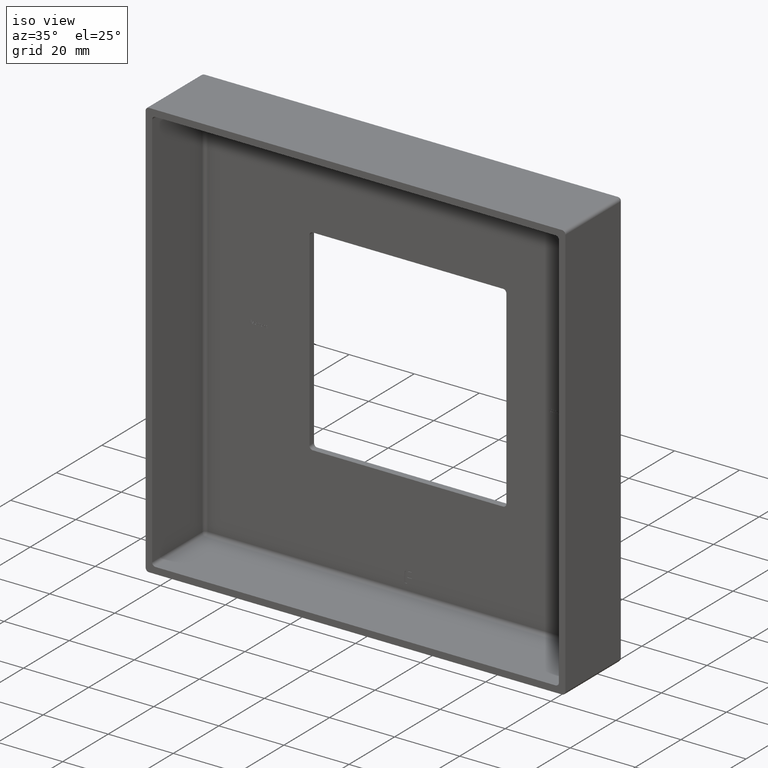
[diagram: clean part render]
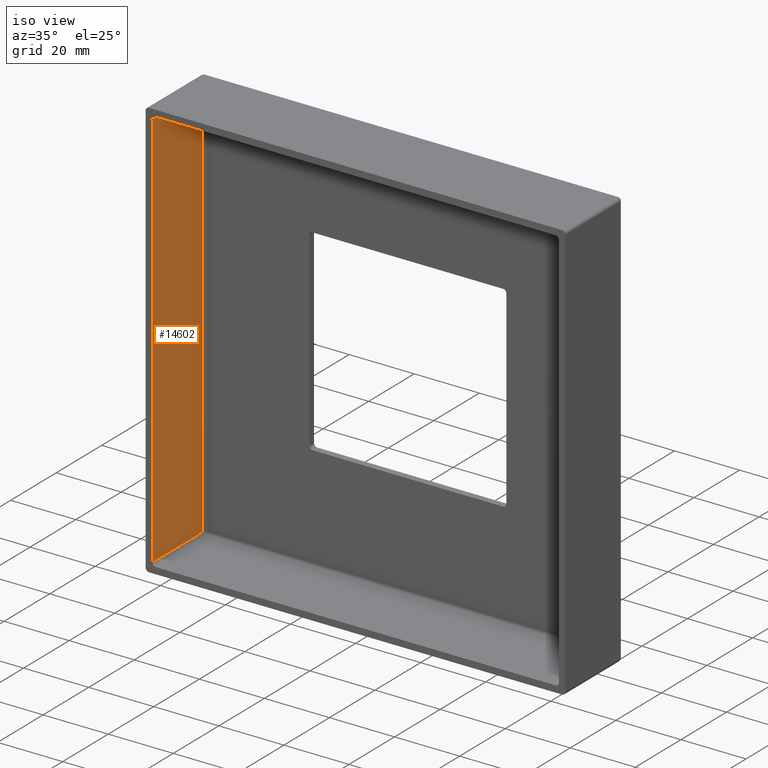
[diagram: same view with one face highlighted and labeled with its STEP entity id]
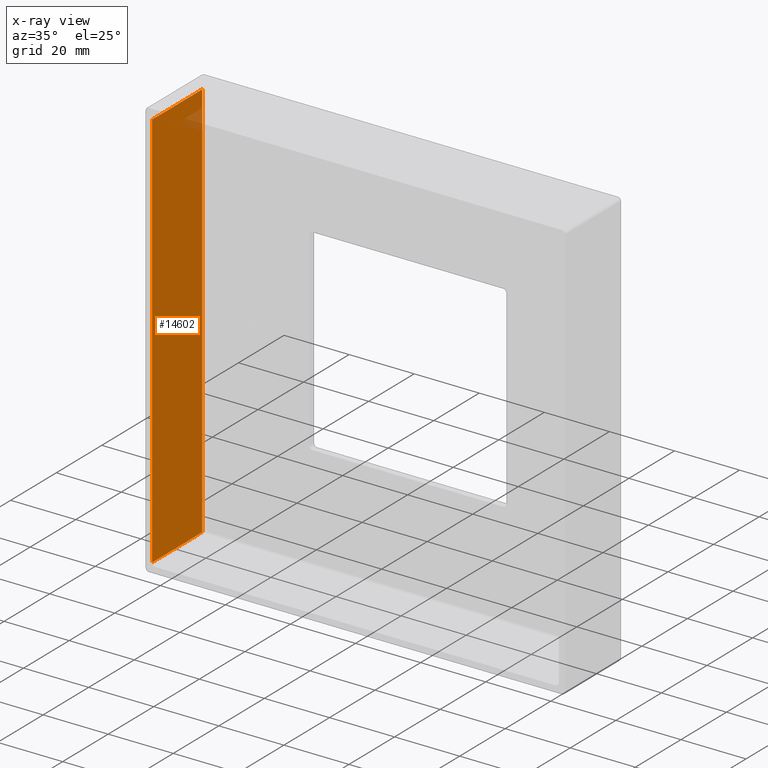
[diagram: x-ray of the same camera — body ghosted, the highlighted face saturated]
A machine part, iso view. The second image highlights one B-rep face of the part: STEP entity #14602.
The next image is the same camera in x-ray: the body ghosted, the highlighted face saturated — about 1% of this face is hidden behind the body in this view.
In plain terms, the highlighted planar face has unit normal (1, 0, -0).
Its self-contained STEP definition (entity closure, byte-faithful):
#496 = VECTOR ( 'NONE', #11982, 1000.000000000000000 ) ;
#508 = CARTESIAN_POINT ( 'NONE',  ( -62.50000000000000000, 0.000000000000000000, -64.49999999999997158 ) ) ;
#665 = EDGE_CURVE ( 'NONE', #11617, #6053, #14047, .T. ) ;
#917 = ORIENTED_EDGE ( 'NONE', *, *, #7552, .F. ) ;
#969 = EDGE_CURVE ( 'NONE', #5833, #6236, #6227, .T. ) ;
#1514 = DIRECTION ( 'NONE',  ( 2.151595008963482038E-16, -0.000000000000000000, 1.000000000000000000 ) ) ;
#2000 = DIRECTION ( 'NONE',  ( 1.000000000000000000, 0.000000000000000000, -2.151595008963482038E-16 ) ) ;
#2292 = FACE_OUTER_BOUND ( 'NONE', #5176, .T. ) ;
#3880 = LINE ( 'NONE', #8354, #4952 ) ;
#4245 = CARTESIAN_POINT ( 'NONE',  ( -62.49999999999997158, 0.000000000000000000, 61.50000000000000000 ) ) ;
#4952 = VECTOR ( 'NONE', #1514, 1000.000000000000000 ) ;
#5046 = ORIENTED_EDGE ( 'NONE', *, *, #969, .T. ) ;
#5176 = EDGE_LOOP ( 'NONE', ( #917, #16338, #7413, #5046 ) ) ;
#5595 = CARTESIAN_POINT ( 'NONE',  ( -62.49999999999997158, 22.00000000000000000, 61.50000000000000000 ) ) ;
#5833 = VERTEX_POINT ( 'NONE', #5595 ) ;
#6053 = VERTEX_POINT ( 'NONE', #6066 ) ;
#6066 = CARTESIAN_POINT ( 'NONE',  ( -62.50000000000000000, 22.00000000000000000, -61.49999999999997158 ) ) ;
#6227 = LINE ( 'NONE', #9234, #496 ) ;
#6236 = VERTEX_POINT ( 'NONE', #4245 ) ;
#7227 = CARTESIAN_POINT ( 'NONE',  ( -62.50000000000000000, 0.000000000000000000, -61.49999999999997158 ) ) ;
#7413 = ORIENTED_EDGE ( 'NONE', *, *, #8319, .T. ) ;
#7552 = EDGE_CURVE ( 'NONE', #11617, #6236, #11325, .T. ) ;
#7699 = VECTOR ( 'NONE', #8662, 1000.000000000000000 ) ;
#8319 = EDGE_CURVE ( 'NONE', #6053, #5833, #3880, .T. ) ;
#8354 = CARTESIAN_POINT ( 'NONE',  ( -62.50000000000000000, 22.00000000000000000, -64.49999999999997158 ) ) ;
#8662 = DIRECTION ( 'NONE',  ( 2.151595008963482038E-16, -0.000000000000000000, 1.000000000000000000 ) ) ;
#9188 = CARTESIAN_POINT ( 'NONE',  ( -62.50000000000000000, 23.00000000000000000, -61.49999999999997158 ) ) ;
#9234 = CARTESIAN_POINT ( 'NONE',  ( -62.49999999999997158, 0.000000000000000000, 61.50000000000000000 ) ) ;
#9990 = CARTESIAN_POINT ( 'NONE',  ( -62.50000000000000000, 25.00000000000000000, -64.49999999999997158 ) ) ;
#11314 = VECTOR ( 'NONE', #11811, 1000.000000000000000 ) ;
#11325 = LINE ( 'NONE', #508, #7699 ) ;
#11414 = DIRECTION ( 'NONE',  ( -2.151595008963482038E-16, 0.000000000000000000, -1.000000000000000000 ) ) ;
#11617 = VERTEX_POINT ( 'NONE', #7227 ) ;
#11811 = DIRECTION ( 'NONE',  ( -0.000000000000000000, 1.000000000000000000, -0.000000000000000000 ) ) ;
#11982 = DIRECTION ( 'NONE',  ( 0.000000000000000000, -1.000000000000000000, 0.000000000000000000 ) ) ;
#14047 = LINE ( 'NONE', #9188, #11314 ) ;
#14602 = ADVANCED_FACE ( 'NONE', ( #2292 ), #16760, .T. ) ;
#14749 = AXIS2_PLACEMENT_3D ( 'NONE', #9990, #2000, #11414 ) ;
#16338 = ORIENTED_EDGE ( 'NONE', *, *, #665, .T. ) ;
#16760 = PLANE ( 'NONE',  #14749 ) ;